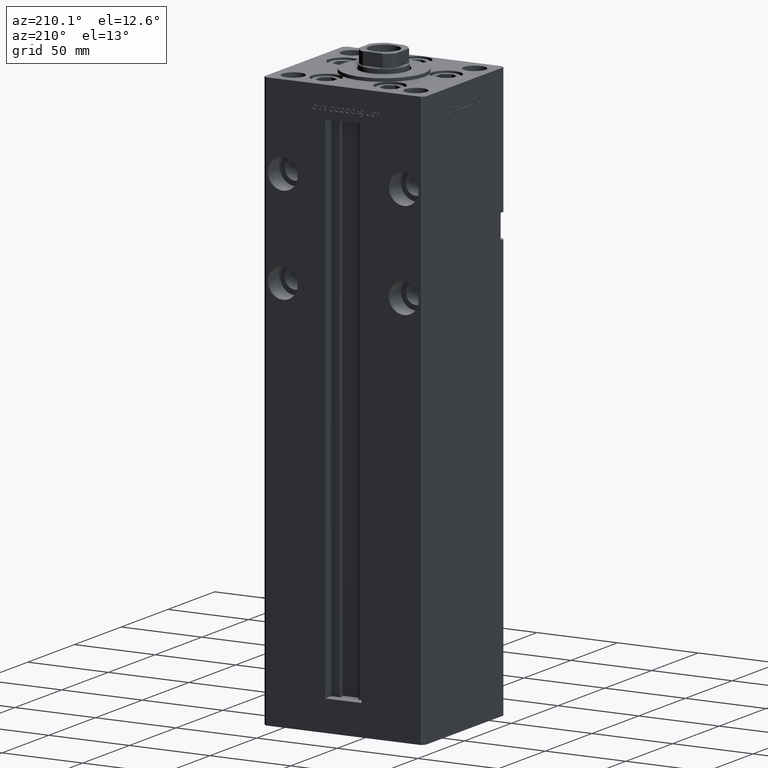
[diagram: clean part render]
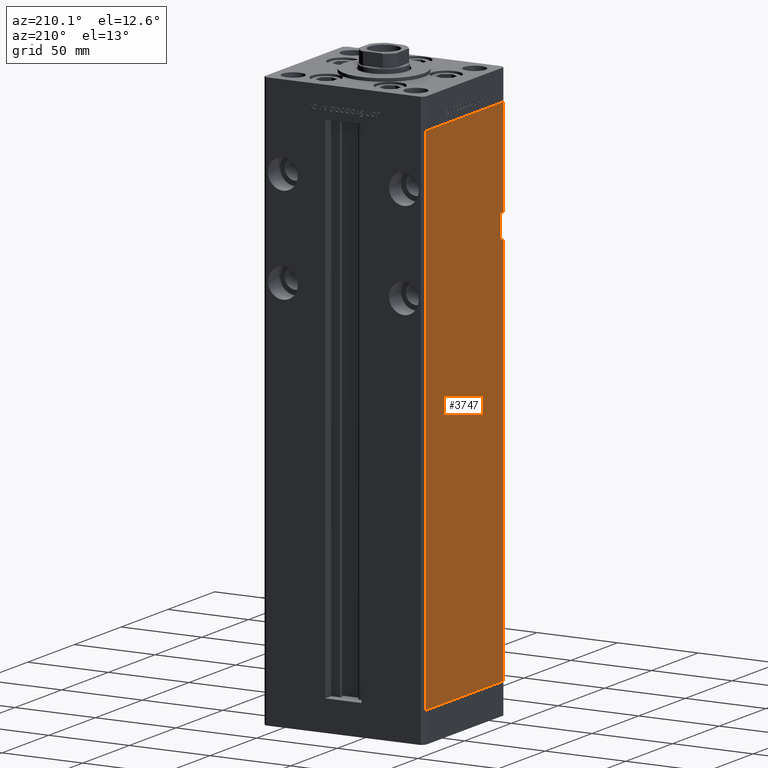
[diagram: same view with one face highlighted and labeled with its STEP entity id]
A machine part, auxiliary view. The second image highlights one B-rep face of the part: STEP entity #3747.
In plain terms, the highlighted planar face has unit normal (1, 0, 0).
Its self-contained STEP definition (entity closure, byte-faithful):
#1891 = FACE_OUTER_BOUND ( 'NONE', #28387, .T. ) ;
#2293 = DIRECTION ( 'NONE',  ( -0.000000000000000000, -0.000000000000000000, -1.000000000000000000 ) ) ;
#3554 = VERTEX_POINT ( 'NONE', #43802 ) ;
#3747 = ADVANCED_FACE ( 'NONE', ( #1891 ), #43013, .F. ) ;
#4122 = CARTESIAN_POINT ( 'NONE',  ( -49.99999999999998579, -41.49999999999999289, 243.0000000000000000 ) ) ;
#5357 = ORIENTED_EDGE ( 'NONE', *, *, #16051, .T. ) ;
#5725 = LINE ( 'NONE', #14321, #9977 ) ;
#5937 = DIRECTION ( 'NONE',  ( -3.344045254895050480E-16, 1.000000000000000000, 0.000000000000000000 ) ) ;
#6136 = CARTESIAN_POINT ( 'NONE',  ( -49.99999999999998579, -38.50000000000000000, 243.0000000000000000 ) ) ;
#6918 = VECTOR ( 'NONE', #47980, 1000.000000000000000 ) ;
#7230 = DIRECTION ( 'NONE',  ( 0.000000000000000000, 0.000000000000000000, -1.000000000000000000 ) ) ;
#7746 = VERTEX_POINT ( 'NONE', #28116 ) ;
#8067 = VERTEX_POINT ( 'NONE', #48365 ) ;
#8801 = ORIENTED_EDGE ( 'NONE', *, *, #33322, .F. ) ;
#9481 = DIRECTION ( 'NONE',  ( 3.344045254895050973E-16, -1.000000000000000000, 0.000000000000000000 ) ) ;
#9906 = LINE ( 'NONE', #6136, #25371 ) ;
#9977 = VECTOR ( 'NONE', #42799, 1000.000000000000000 ) ;
#11177 = ORIENTED_EDGE ( 'NONE', *, *, #35782, .F. ) ;
#11607 = VERTEX_POINT ( 'NONE', #15965 ) ;
#14321 = CARTESIAN_POINT ( 'NONE',  ( -50.00000000000001421, 41.49999999999999289, 0.000000000000000000 ) ) ;
#14728 = DIRECTION ( 'NONE',  ( -0.000000000000000000, -1.000000000000000000, -0.000000000000000000 ) ) ;
#14857 = ORIENTED_EDGE ( 'NONE', *, *, #18027, .T. ) ;
#15275 = EDGE_CURVE ( 'NONE', #3554, #11607, #41460, .T. ) ;
#15437 = LINE ( 'NONE', #22700, #33903 ) ;
#15944 = CARTESIAN_POINT ( 'NONE',  ( -50.00000000000001421, 41.49999999999999289, 0.000000000000000000 ) ) ;
#15965 = CARTESIAN_POINT ( 'NONE',  ( -49.99999999999998579, -41.49999999999999289, 318.5000000000000000 ) ) ;
#16051 = EDGE_CURVE ( 'NONE', #3554, #35084, #15437, .T. ) ;
#16726 = EDGE_CURVE ( 'NONE', #22311, #28281, #9906, .T. ) ;
#17108 = CARTESIAN_POINT ( 'NONE',  ( -49.99999999999998579, -38.50000000000000000, 258.0000000000000000 ) ) ;
#18027 = EDGE_CURVE ( 'NONE', #35084, #7746, #5725, .T. ) ;
#19205 = EDGE_CURVE ( 'NONE', #11607, #8067, #50011, .T. ) ;
#19448 = VECTOR ( 'NONE', #29826, 1000.000000000000000 ) ;
#20615 = ORIENTED_EDGE ( 'NONE', *, *, #19205, .F. ) ;
#20769 = CARTESIAN_POINT ( 'NONE',  ( -50.00000000000001421, 41.49999999999999289, 318.5000000000000000 ) ) ;
#22311 = VERTEX_POINT ( 'NONE', #37897 ) ;
#22500 = VECTOR ( 'NONE', #34560, 1000.000000000000000 ) ;
#22552 = AXIS2_PLACEMENT_3D ( 'NONE', #47583, #34674, #5937 ) ;
#22698 = VERTEX_POINT ( 'NONE', #35421 ) ;
#22700 = CARTESIAN_POINT ( 'NONE',  ( -50.00000000000001421, 41.49999999999999289, 318.5000000000000000 ) ) ;
#25371 = VECTOR ( 'NONE', #14728, 1000.000000000000000 ) ;
#28116 = CARTESIAN_POINT ( 'NONE',  ( -49.99999999999998579, -41.49999999999999289, 0.000000000000000000 ) ) ;
#28281 = VERTEX_POINT ( 'NONE', #4122 ) ;
#28387 = EDGE_LOOP ( 'NONE', ( #8801, #42254, #11177, #33410, #20615, #42276, #5357, #14857 ) ) ;
#29826 = DIRECTION ( 'NONE',  ( -0.000000000000000000, -0.000000000000000000, -1.000000000000000000 ) ) ;
#32370 = LINE ( 'NONE', #48777, #6918 ) ;
#33322 = EDGE_CURVE ( 'NONE', #28281, #7746, #32370, .T. ) ;
#33410 = ORIENTED_EDGE ( 'NONE', *, *, #46807, .T. ) ;
#33903 = VECTOR ( 'NONE', #2293, 1000.000000000000000 ) ;
#34560 = DIRECTION ( 'NONE',  ( -0.000000000000000000, -1.000000000000000000, -0.000000000000000000 ) ) ;
#34674 = DIRECTION ( 'NONE',  ( 1.000000000000000000, 3.344045254895050480E-16, -0.000000000000000000 ) ) ;
#35084 = VERTEX_POINT ( 'NONE', #15944 ) ;
#35421 = CARTESIAN_POINT ( 'NONE',  ( -49.99999999999998579, -38.50000000000000000, 258.0000000000000000 ) ) ;
#35782 = EDGE_CURVE ( 'NONE', #22698, #22311, #40253, .T. ) ;
#37897 = CARTESIAN_POINT ( 'NONE',  ( -49.99999999999998579, -38.50000000000000000, 243.0000000000000000 ) ) ;
#40253 = LINE ( 'NONE', #52623, #49947 ) ;
#41460 = LINE ( 'NONE', #20769, #51096 ) ;
#41936 = CARTESIAN_POINT ( 'NONE',  ( -49.99999999999998579, -41.49999999999999289, 318.5000000000000000 ) ) ;
#42254 = ORIENTED_EDGE ( 'NONE', *, *, #16726, .F. ) ;
#42276 = ORIENTED_EDGE ( 'NONE', *, *, #15275, .F. ) ;
#42799 = DIRECTION ( 'NONE',  ( 3.344045254895050973E-16, -1.000000000000000000, 0.000000000000000000 ) ) ;
#43013 = PLANE ( 'NONE',  #22552 ) ;
#43802 = CARTESIAN_POINT ( 'NONE',  ( -50.00000000000001421, 41.49999999999999289, 318.5000000000000000 ) ) ;
#46126 = LINE ( 'NONE', #17108, #22500 ) ;
#46807 = EDGE_CURVE ( 'NONE', #22698, #8067, #46126, .T. ) ;
#47583 = CARTESIAN_POINT ( 'NONE',  ( -50.00000000000001421, 41.49999999999999289, 318.5000000000000000 ) ) ;
#47980 = DIRECTION ( 'NONE',  ( -0.000000000000000000, -0.000000000000000000, -1.000000000000000000 ) ) ;
#48365 = CARTESIAN_POINT ( 'NONE',  ( -49.99999999999998579, -41.49999999999999289, 258.0000000000000000 ) ) ;
#48777 = CARTESIAN_POINT ( 'NONE',  ( -49.99999999999998579, -41.49999999999999289, 318.5000000000000000 ) ) ;
#49947 = VECTOR ( 'NONE', #7230, 1000.000000000000000 ) ;
#50011 = LINE ( 'NONE', #41936, #19448 ) ;
#51096 = VECTOR ( 'NONE', #9481, 1000.000000000000000 ) ;
#52623 = CARTESIAN_POINT ( 'NONE',  ( -49.99999999999998579, -38.50000000000000000, 258.0000000000000000 ) ) ;